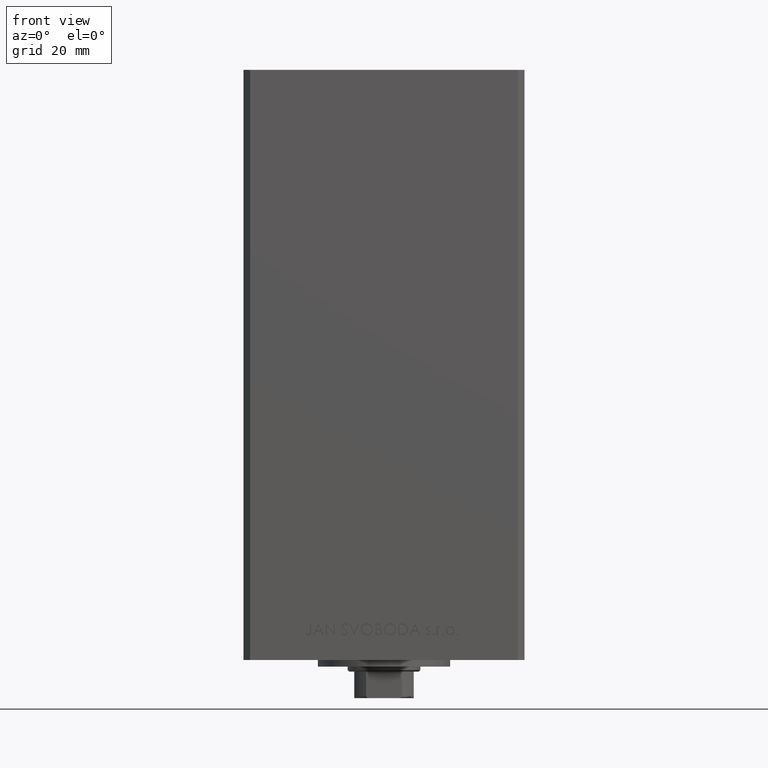
[diagram: clean part render]
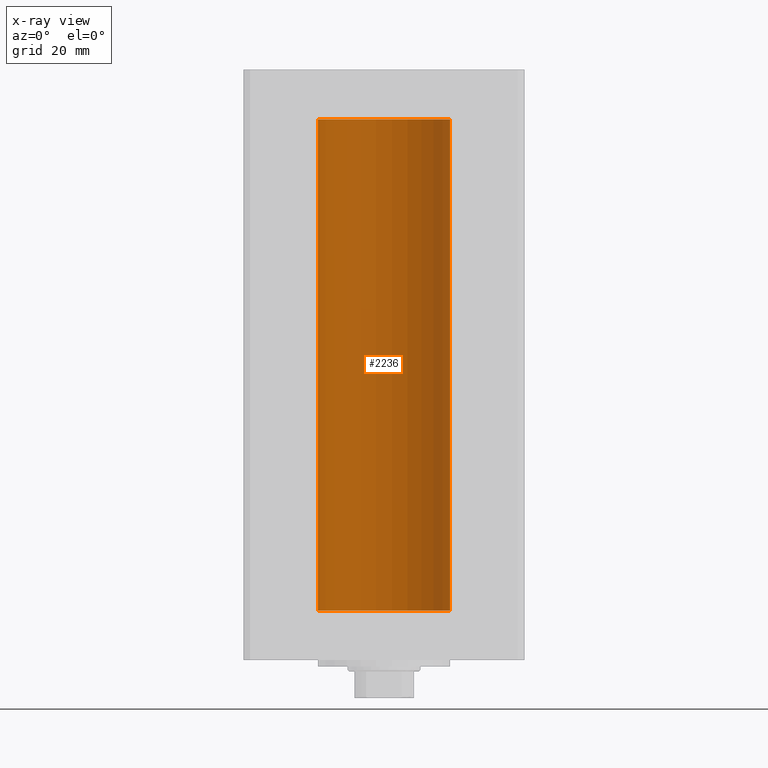
[diagram: x-ray — body ghosted, one internal face saturated and labeled with its STEP entity id]
A machine part, front view, then the same camera in x-ray: the body is ghosted and one INTERNAL B-rep face — a face not visible from any outside direction — is saturated and labeled: STEP entity #2236.
In plain terms, the highlighted cylindrical surface (partial cylindrical patch) has radius 20 mm, axis along (-0, -0, -1).
Its self-contained STEP definition (entity closure, byte-faithful):
#2236 = ADVANCED_FACE ( 'NONE', ( #29418 ), #9756, .F. ) ;
#2316 = CARTESIAN_POINT ( 'NONE',  ( 0.000000000000000000, 0.000000000000000000, 148.5000000000000000 ) ) ;
#2959 = CARTESIAN_POINT ( 'NONE',  ( -20.00000000000000000, 0.000000000000000000, 148.5000000000000000 ) ) ;
#5591 = EDGE_LOOP ( 'NONE', ( #20756, #36966, #31753, #18360 ) ) ;
#5815 = DIRECTION ( 'NONE',  ( 1.000000000000000000, 0.000000000000000000, 0.000000000000000000 ) ) ;
#8172 = VERTEX_POINT ( 'NONE', #46906 ) ;
#9007 = CARTESIAN_POINT ( 'NONE',  ( 20.00000000000000000, 2.449293598294706513E-15, 148.5000000000000000 ) ) ;
#9733 = AXIS2_PLACEMENT_3D ( 'NONE', #13498, #36172, #24962 ) ;
#9756 = CYLINDRICAL_SURFACE ( 'NONE', #9733, 20.00000000000000000 ) ;
#11404 = DIRECTION ( 'NONE',  ( -0.000000000000000000, -0.000000000000000000, -1.000000000000000000 ) ) ;
#13498 = CARTESIAN_POINT ( 'NONE',  ( 0.000000000000000000, 0.000000000000000000, 148.5000000000000000 ) ) ;
#13781 = CARTESIAN_POINT ( 'NONE',  ( 0.000000000000000000, 0.000000000000000000, 0.000000000000000000 ) ) ;
#14325 = EDGE_CURVE ( 'NONE', #39821, #8172, #45525, .T. ) ;
#16567 = VERTEX_POINT ( 'NONE', #9007 ) ;
#17496 = DIRECTION ( 'NONE',  ( 1.000000000000000000, 0.000000000000000000, 0.000000000000000000 ) ) ;
#18360 = ORIENTED_EDGE ( 'NONE', *, *, #46308, .F. ) ;
#20754 = CARTESIAN_POINT ( 'NONE',  ( 20.00000000000000000, 2.449293598294706513E-15, 0.000000000000000000 ) ) ;
#20756 = ORIENTED_EDGE ( 'NONE', *, *, #30350, .F. ) ;
#22266 = LINE ( 'NONE', #49137, #40592 ) ;
#23178 = EDGE_CURVE ( 'NONE', #16567, #39821, #41278, .T. ) ;
#23861 = VERTEX_POINT ( 'NONE', #20754 ) ;
#24962 = DIRECTION ( 'NONE',  ( -1.000000000000000000, 0.000000000000000000, 0.000000000000000000 ) ) ;
#25252 = DIRECTION ( 'NONE',  ( -0.000000000000000000, 0.000000000000000000, 1.000000000000000000 ) ) ;
#29418 = FACE_OUTER_BOUND ( 'NONE', #5591, .T. ) ;
#30350 = EDGE_CURVE ( 'NONE', #16567, #23861, #22266, .T. ) ;
#30562 = CIRCLE ( 'NONE', #37725, 20.00000000000000000 ) ;
#31753 = ORIENTED_EDGE ( 'NONE', *, *, #14325, .T. ) ;
#33466 = DIRECTION ( 'NONE',  ( -0.000000000000000000, -0.000000000000000000, -1.000000000000000000 ) ) ;
#35699 = AXIS2_PLACEMENT_3D ( 'NONE', #2316, #44871, #17496 ) ;
#36172 = DIRECTION ( 'NONE',  ( -0.000000000000000000, -0.000000000000000000, -1.000000000000000000 ) ) ;
#36966 = ORIENTED_EDGE ( 'NONE', *, *, #23178, .T. ) ;
#37725 = AXIS2_PLACEMENT_3D ( 'NONE', #13781, #25252, #5815 ) ;
#39821 = VERTEX_POINT ( 'NONE', #47502 ) ;
#40592 = VECTOR ( 'NONE', #33466, 1000.000000000000000 ) ;
#41278 = CIRCLE ( 'NONE', #35699, 20.00000000000000000 ) ;
#41904 = VECTOR ( 'NONE', #11404, 1000.000000000000000 ) ;
#44871 = DIRECTION ( 'NONE',  ( -0.000000000000000000, 0.000000000000000000, 1.000000000000000000 ) ) ;
#45525 = LINE ( 'NONE', #2959, #41904 ) ;
#46308 = EDGE_CURVE ( 'NONE', #23861, #8172, #30562, .T. ) ;
#46906 = CARTESIAN_POINT ( 'NONE',  ( -20.00000000000000000, 0.000000000000000000, 0.000000000000000000 ) ) ;
#47502 = CARTESIAN_POINT ( 'NONE',  ( -20.00000000000000000, 0.000000000000000000, 148.5000000000000000 ) ) ;
#49137 = CARTESIAN_POINT ( 'NONE',  ( 20.00000000000000000, 2.449293598294706513E-15, 148.5000000000000000 ) ) ;